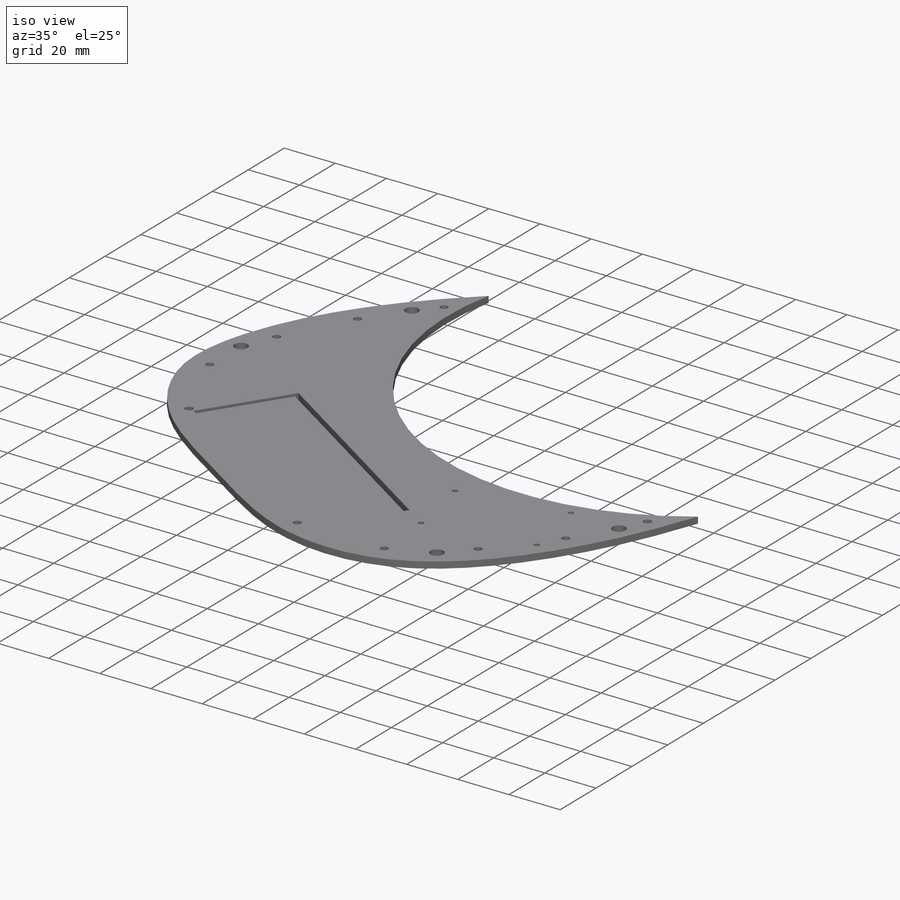
[diagram: iso view]
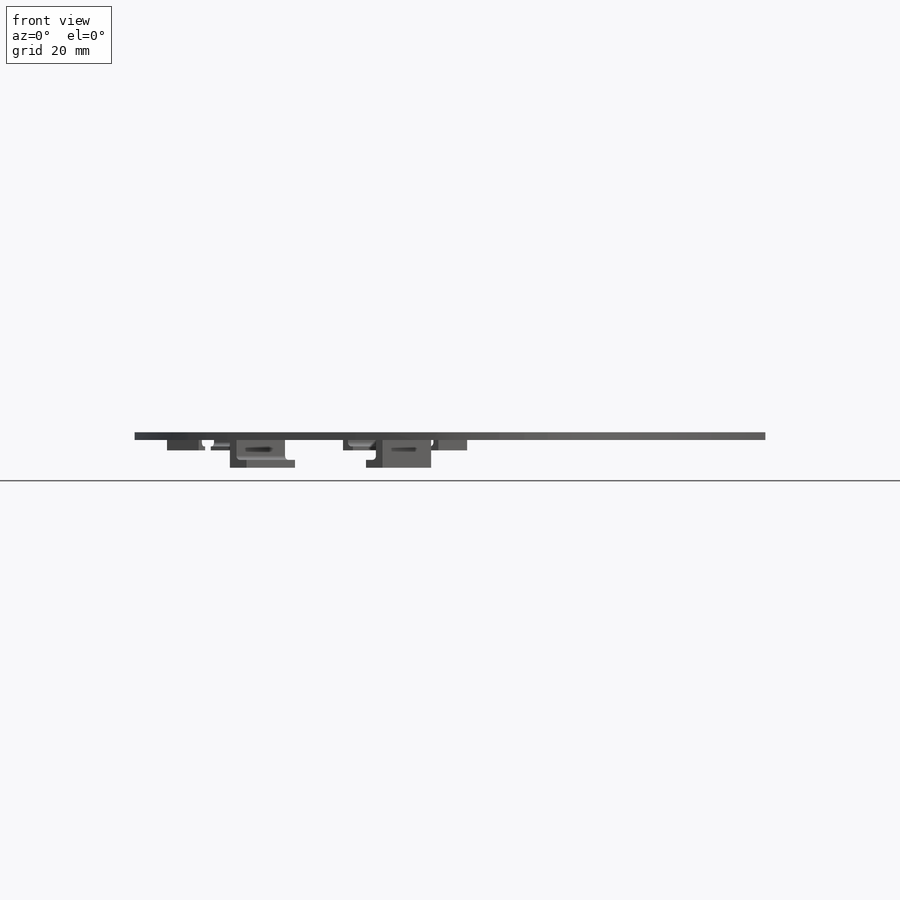
[diagram: front view]
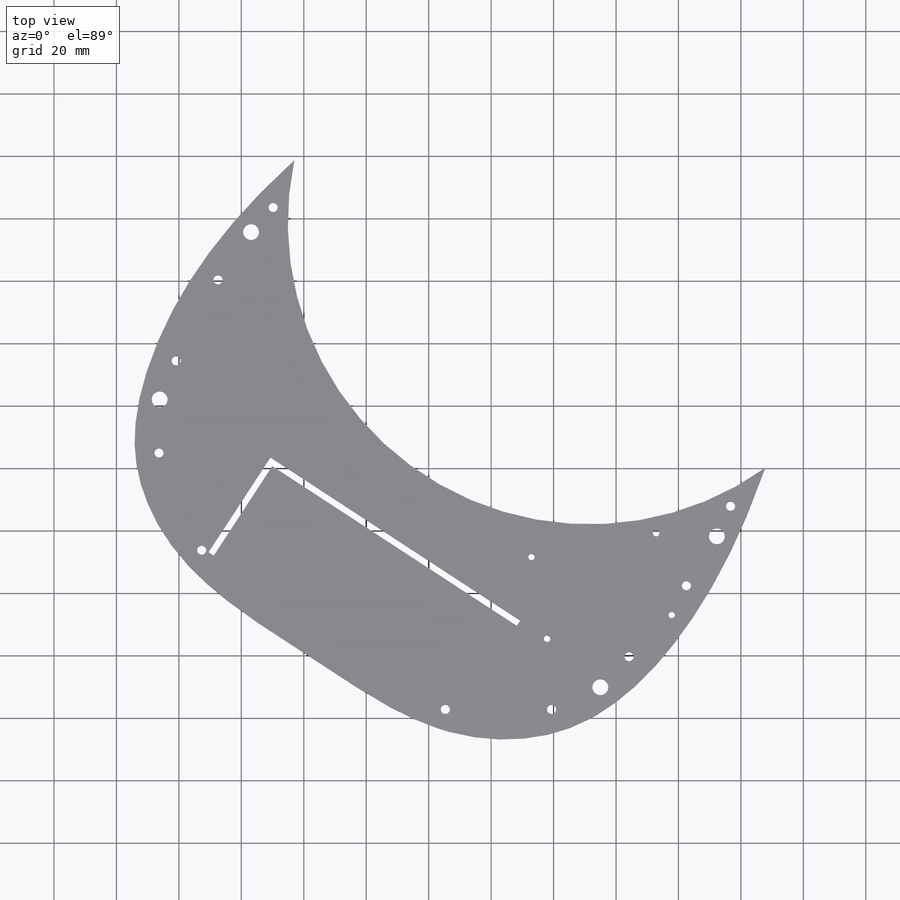
[diagram: top view]
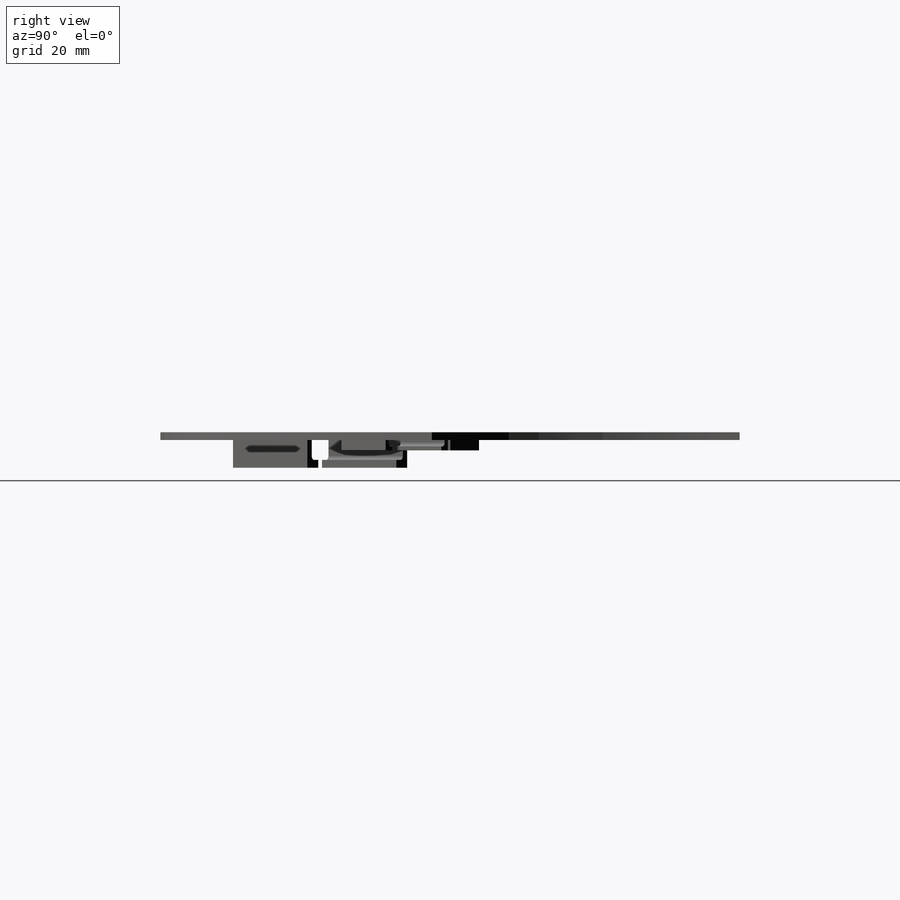
[diagram: right view]
SOLIDWORKS PART (.sldprt)
format: sldprt  version: not decoded by parser v0  size: 573,952 bytes
history: native  units: mm
features: sketch x14, extrude x6, cut_extrude x5, fillet x2, material x1, plane x1, mirror x1 (+13 scaffold rows collapsed)
feature tree (43):
  scaffold x13  (default folders/planes/origin — collapsed)
  material  "Material <not specified>"
  sketch  "Sketch1"
  extrude  "Boss-Extrude1"  Depth=2.5mm
  sketch  "Sketch3"
  sketch  "Sketch4"
  extrude  "Boss-Extrude2"  Depth=2.5mm
  sketch  "Sketch5"  dims[c1.D3=2.032mm c1.D1=30.48mm c1.D2=44.45mm c1.D4=1.905mm c1.D5=~2.300862mm c2.D5=90.0deg c3.D5=1.905mm c3.D6=~29.939881mm c4.D6=90.0deg c4.D7=26.924mm c4.D8=12.6746mm]
  cut_extrude  "Cut-Extrude1"  Depth=2.5mm
  sketch  "Sketch6"
  sketch  "Sketch7"  dims[D1=2.9mm D2=2.9mm D3=2.9mm D4=2.9mm D5=2.9mm]
  cut_extrude  "Cut-Extrude2"  Depth=22.5mm
  sketch  "Sketch8"  dims[c1.D1=30.1625mm c1.D2=20.6375mm c1.D3=~150.850486mm c2.D3=0.0deg c2.D4=0.0mm c2.D5=~13.711692mm c3.D5=~123.15762deg c4.D5=~22.614358mm c5.D5=~33.15762deg c6.D5=20.6375mm c6.D6=30.1625mm c6.D7=20.6375mm c7.D7=360.0deg c7.D8=~170.201255mm c8.D8=360.0deg c8.D9=2.54mm c8.D10=2.54mm c8.D11=1.27mm c8.D12=~20.555776mm c9.D12=0.0deg c9.D13=1.905mm c9.D14=20.6375mm c10.D14=0.0deg c10.D15=1.27mm c10.D16=1.905mm c10.D17=0.0mm c10.D18=3.81mm c10.D19=3.81mm]
  extrude  "Boss-Extrude3"  Depth=2.032mm
  sketch  "Sketch9"  dims[D1=3.81mm D2=3.81mm D3=3.81mm D4=3.81mm]
  extrude  "Boss-Extrude4"  Depth=1.27mm
  sketch  "Sketch10"  dims[c1.D1=~37.327421mm c2.D1=0.0deg c2.D2=50.8mm c2.D3=33.528mm c2.D4=~2.185434mm c3.D4=0.0deg c3.D5=2.54mm c3.D6=2.54mm c3.D7=1.27mm c3.D8=2.54mm]
  fillet  "Fillet1"  Radius=1.27mm
  extrude  "Boss-Extrude5"  Depth=6.35mm
  sketch  "Sketch11"  dims[D1=6.35mm D2=6.35mm]
  extrude  "Boss-Extrude6"  Depth=2.54mm
  fillet  "Fillet2"  Radius=1.27mm
  sketch  "Sketch12"  dims[D1=~2.535183mm]
  cut_extrude  "Cut-Extrude3"  Depth=2.54mm
  sketch  "Sketch13"
  plane  "Plane1"
  mirror  "Mirror1"
  sketch  "Sketch14"  dims[D1=16.0mm D2=0.0mm D3=16.0mm D4=0.0mm]
  cut_extrude  "Cut-Extrude5"  Depth=2mm
  sketch  "Sketch15"  dims[c1.D1=~36.943973mm c2.D1=0.0deg c2.D2=2.0mm c2.D3=2.0mm]
  cut_extrude  "Cut-Extrude6"  Depth=30.194mm
decode coverage: 22 of 28 modeling features carry decoded parameters
note: ~ marks probable driven/reference dimensions
note: suppression state not decoded; provenance and decode notes live in map.json
